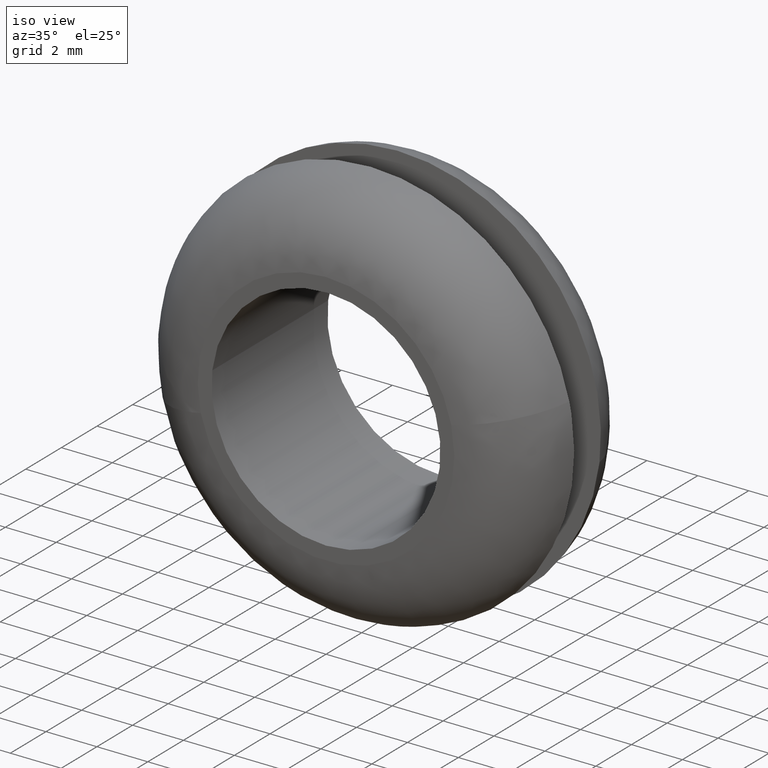
[diagram: clean part render]
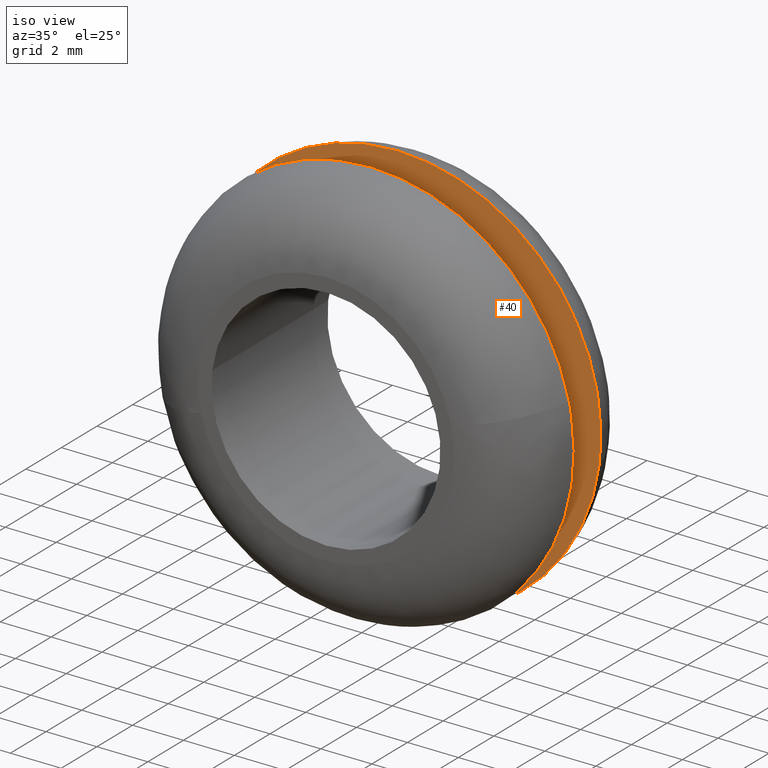
[diagram: same view with one face highlighted and labeled with its STEP entity id]
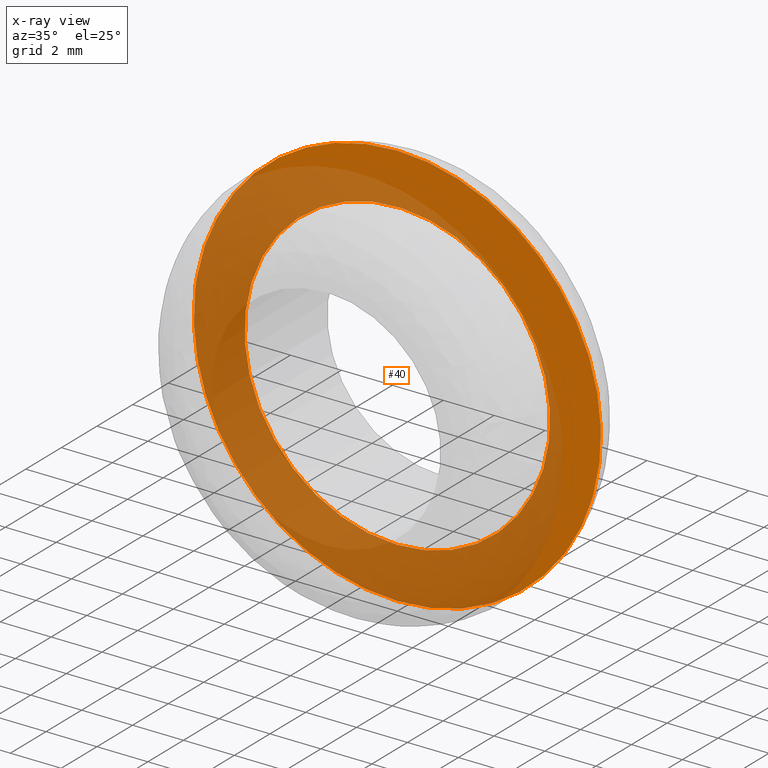
[diagram: x-ray of the same camera — body ghosted, the highlighted face saturated]
A machine part, iso view. The second image highlights one B-rep face of the part: STEP entity #40.
The next image is the same camera in x-ray: the body ghosted, the highlighted face saturated — about 65% of this face is hidden behind the body in this view.
In plain terms, the highlighted planar face has unit normal (0, 1, 0).
Its self-contained STEP definition (entity closure, byte-faithful):
#40=ADVANCED_FACE('',(#53,#54),#52,.F.);
#52=PLANE('',#179);
#53=FACE_OUTER_BOUND('',#180,.T.);
#54=FACE_BOUND('',#181,.T.);
#176=CARTESIAN_POINT('',(-1.14033918207E+001,3.99999999414E+000,-9.59999998990E+000));
#177=DIRECTION('',(0.00000000000E+000,1.00000000000E+000,0.00000000000E+000));
#178=DIRECTION('',(0.00000000000E+000,0.00000000000E+000,1.00000000000E+000));
#179=AXIS2_PLACEMENT_3D('',#176,#177,#178);
#180=EDGE_LOOP('',(#324,#325,#326,#327,#328));
#181=EDGE_LOOP('',(#329,#330,#331));
#324=ORIENTED_EDGE('',*,*,#396,.T.);
#325=ORIENTED_EDGE('',*,*,#397,.T.);
#326=ORIENTED_EDGE('',*,*,#398,.T.);
#327=ORIENTED_EDGE('',*,*,#399,.T.);
#328=ORIENTED_EDGE('',*,*,#400,.T.);
#329=ORIENTED_EDGE('',*,*,#401,.F.);
#330=ORIENTED_EDGE('',*,*,#402,.F.);
#331=ORIENTED_EDGE('',*,*,#403,.F.);
#396=EDGE_CURVE('',#432,#433,#434,.T.);
#397=EDGE_CURVE('',#433,#440,#441,.T.);
#398=EDGE_CURVE('',#440,#447,#448,.T.);
#399=EDGE_CURVE('',#447,#454,#455,.T.);
#400=EDGE_CURVE('',#454,#432,#461,.T.);
#401=EDGE_CURVE('',#467,#468,#469,.T.);
#402=EDGE_CURVE('',#475,#467,#476,.T.);
#403=EDGE_CURVE('',#468,#475,#482,.T.);
#432=VERTEX_POINT('',#676);
#433=VERTEX_POINT('',#677);
#434=CIRCLE('',#681,7.99999971676E+000);
#440=VERTEX_POINT('',#682);
#441=CIRCLE('',#686,7.99999970527E+000);
#447=VERTEX_POINT('',#687);
#448=CIRCLE('',#691,7.99999970759E+000);
#454=VERTEX_POINT('',#692);
#455=CIRCLE('',#696,7.99999970759E+000);
#461=CIRCLE('',#700,7.99999970652E+000);
#467=VERTEX_POINT('',#701);
#468=VERTEX_POINT('',#702);
#469=CIRCLE('',#706,6.00000000000E+000);
#475=VERTEX_POINT('',#707);
#476=CIRCLE('',#711,6.00000000000E+000);
#482=CIRCLE('',#715,6.00000000000E+000);
#676=CARTESIAN_POINT('',(7.94370217278E+000,4.00000124913E+000,-9.47412622172E-001));
#677=CARTESIAN_POINT('',(0.00000000000E+000,3.99999998829E+000,7.99999989353E+000));
#678=CARTESIAN_POINT('',(-1.55292489978E-008,4.00000061871E+000,1.76768149895E-007));
#679=DIRECTION('',(6.99624485530E-008,-1.00000000000E+000,-7.88024094935E-008));
#680=DIRECTION('',(-9.92962808695E-001,-7.88024111664E-008,1.18426604060E-001));
#681=AXIS2_PLACEMENT_3D('',#678,#679,#680);
#682=CARTESIAN_POINT('',(-7.87651491780E+000,4.00000076765E+000,1.40018175190E+000));
#683=CARTESIAN_POINT('',(-2.39410460345E-008,4.00000093299E+000,1.88257087252E-007));
#684=DIRECTION('',(-1.17756926698E-016,-1.00000000000E+000,-1.18087852017E-007));
#685=DIRECTION('',(-2.99263086457E-009,1.18087852017E-007,-1.00000000000E+000));
#686=AXIS2_PLACEMENT_3D('',#683,#684,#685);
#687=CARTESIAN_POINT('',(-7.94370178688E+000,4.00000026276E+000,9.47416640127E-001));
#688=CARTESIAN_POINT('',(-8.81037860445E-008,4.00000108830E+000,-1.85936985364E-007));
#689=DIRECTION('',(2.32798896726E-007,-9.99999999999E-001,1.08056698130E-006));
#690=DIRECTION('',(9.84564389699E-001,4.00817005359E-008,-1.75022748627E-001));
#691=AXIS2_PLACEMENT_3D('',#688,#689,#690);
#692=CARTESIAN_POINT('',(0.00000000000E+000,3.99999998829E+000,-7.99999989353E+000));
#693=CARTESIAN_POINT('',(-8.81037860445E-008,4.00000108830E+000,-1.85936985364E-007));
#694=DIRECTION('',(2.32798896726E-007,-9.99999999999E-001,1.08056698130E-006));
#695=DIRECTION('',(9.84564389699E-001,4.00817005359E-008,-1.75022748627E-001));
#696=AXIS2_PLACEMENT_3D('',#693,#694,#695);
#697=CARTESIAN_POINT('',(-4.85976294762E-008,4.00000061871E+000,-1.87013948327E-007));
#698=DIRECTION('',(8.87593255825E-008,-1.00000000000E+000,7.88024094195E-008));
#699=DIRECTION('',(-6.07470390738E-009,7.88024088804E-008,1.00000000000E+000));
#700=AXIS2_PLACEMENT_3D('',#697,#698,#699);
#701=CARTESIAN_POINT('',(-5.95805715818E+000,4.00000000000E+000,7.08205407903E-001));
#702=CARTESIAN_POINT('',(-2.22044604925E-015,4.00000000000E+000,-5.99999999999E+000));
#703=CARTESIAN_POINT('',(1.73239200763E-012,4.00000000000E+000,3.81339404498E-012));
#704=DIRECTION('',(0.00000000000E+000,-1.00000000000E+000,-0.00000000000E+000));
#705=DIRECTION('',(-2.88741253129E-013,0.00000000000E+000,-1.00000000000E+000));
#706=AXIS2_PLACEMENT_3D('',#703,#704,#705);
#707=CARTESIAN_POINT('',(5.95793466628E+000,4.00000000000E+000,-7.09235160062E-001));
#708=CARTESIAN_POINT('',(1.73239200763E-012,4.00000000000E+000,3.81339404498E-012));
#709=DIRECTION('',(0.00000000000E+000,-1.00000000000E+000,-0.00000000000E+000));
#710=DIRECTION('',(-2.88741253129E-013,0.00000000000E+000,-1.00000000000E+000));
#711=AXIS2_PLACEMENT_3D('',#708,#709,#710);
#712=CARTESIAN_POINT('',(1.73239200763E-012,4.00000000000E+000,3.81339404498E-012));
#713=DIRECTION('',(0.00000000000E+000,-1.00000000000E+000,-0.00000000000E+000));
#714=DIRECTION('',(-2.88741253129E-013,0.00000000000E+000,-1.00000000000E+000));
#715=AXIS2_PLACEMENT_3D('',#712,#713,#714);